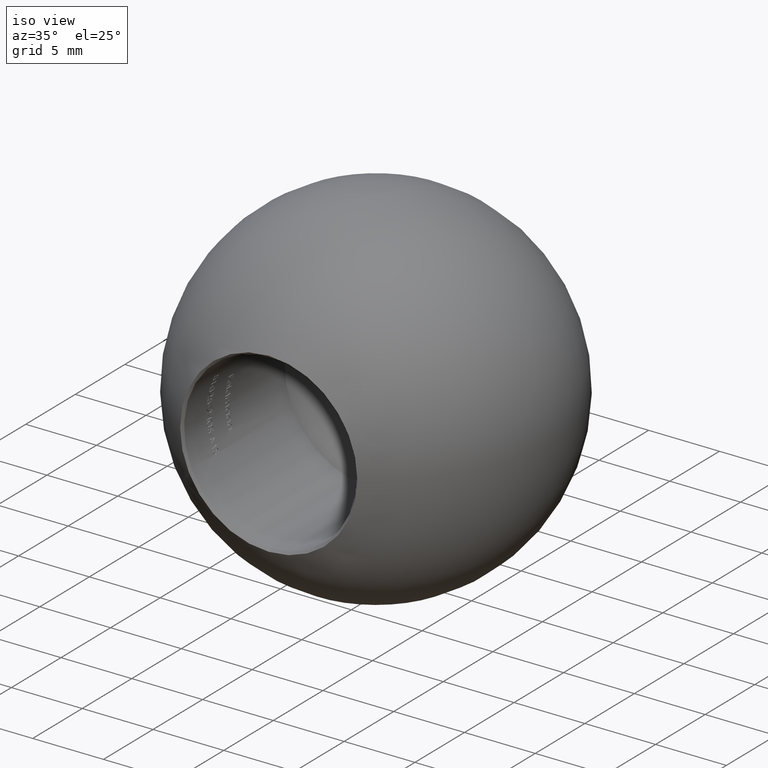
[diagram: clean part render]
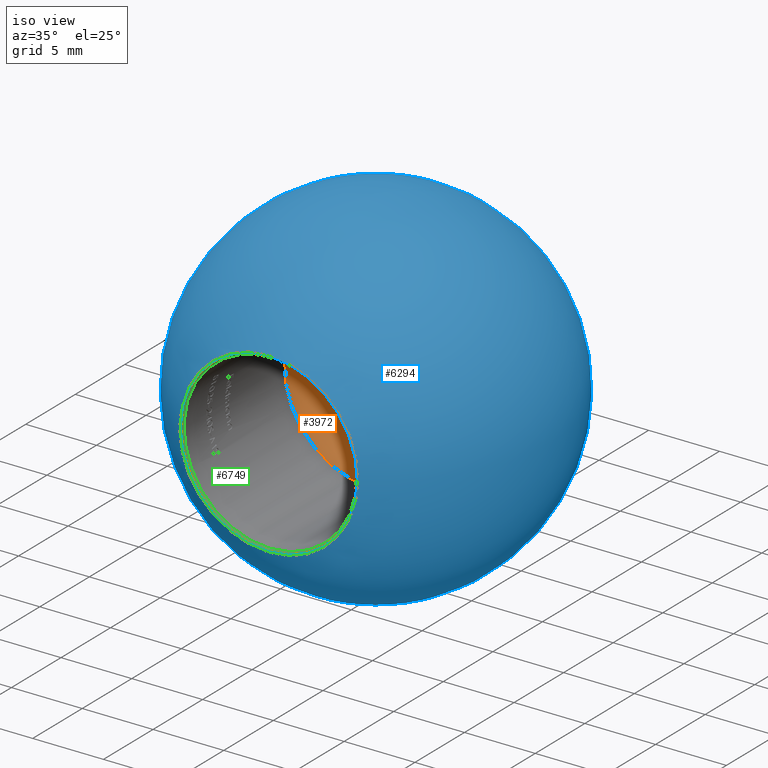
[diagram: same view with three faces highlighted in distinct colors, each labeled with its STEP entity id]
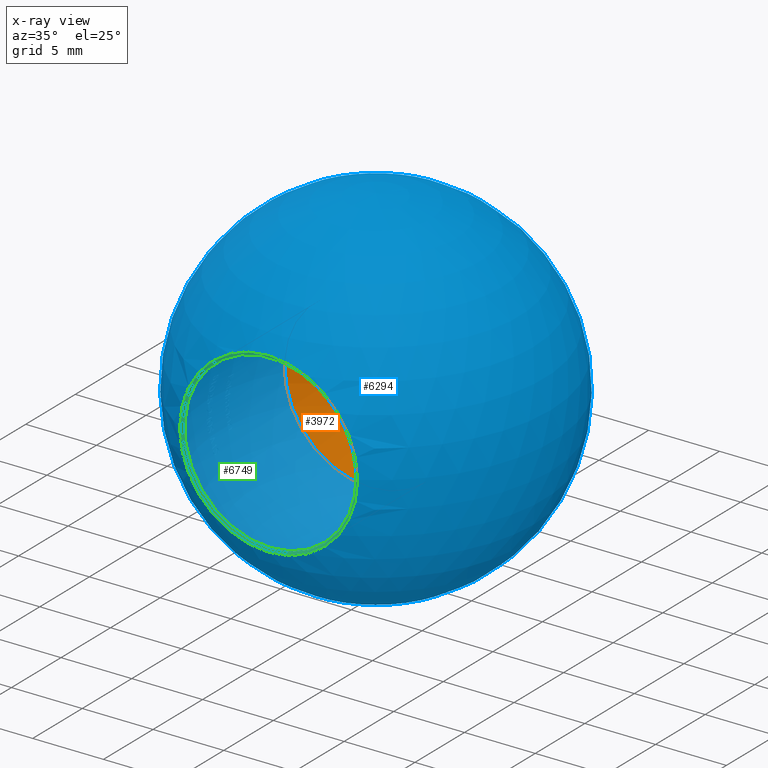
[diagram: x-ray of the same camera — body ghosted, the three highlighted faces saturated]
A machine part, iso view with three faces highlighted in distinct colors.
The next image is the same camera in x-ray (body ghosted, the three faces saturated) — at least one of them is partly hidden behind the body in this view.
Their STEP definitions:

[orange] entity #3972 — the highlighted conical surface has half-angle 59 deg.
#427 = EDGE_CURVE ( 'NONE', #3900, #3900, #2497, .T. ) ;
#1838 = CARTESIAN_POINT ( 'NONE',  ( 0.0000000000000000000, 12.00000000000000000, 0.0000000000000000000 ) ) ;
#2497 = CIRCLE ( 'NONE', #11840, 6.099999999999996100 ) ;
#2939 = CARTESIAN_POINT ( 'NONE',  ( 0.0000000000000000000, 12.00000000000000000, -6.099999999999996100 ) ) ;
#2976 = DIRECTION ( 'NONE',  ( -0.0000000000000000000, -1.000000000000000000, -0.0000000000000000000 ) ) ;
#3900 = VERTEX_POINT ( 'NONE', #2939 ) ;
#3972 = ADVANCED_FACE ( 'NONE', ( #10264 ), #12769, .F. ) ;
#4427 = AXIS2_PLACEMENT_3D ( 'NONE', #1838, #2976, #12400 ) ;
#6100 = DIRECTION ( 'NONE',  ( 0.0000000000000000000, 0.0000000000000000000, -1.000000000000000000 ) ) ;
#9577 = EDGE_LOOP ( 'NONE', ( #10932 ) ) ;
#10264 = FACE_OUTER_BOUND ( 'NONE', #9577, .T. ) ;
#10358 = DIRECTION ( 'NONE',  ( -0.0000000000000000000, -1.000000000000000000, -0.0000000000000000000 ) ) ;
#10932 = ORIENTED_EDGE ( 'NONE', *, *, #427, .T. ) ;
#11840 = AXIS2_PLACEMENT_3D ( 'NONE', #12529, #10358, #6100 ) ;
#12400 = DIRECTION ( 'NONE',  ( 0.0000000000000000000, 0.0000000000000000000, -1.000000000000000000 ) ) ;
#12529 = CARTESIAN_POINT ( 'NONE',  ( 0.0000000000000000000, 12.00000000000000000, 0.0000000000000000000 ) ) ;
#12769 = CONICAL_SURFACE ( 'NONE', #4427, 6.099999999999996100, 1.029744258676653900 ) ;

[blue] entity #6294 — the highlighted spherical surface has radius 12.5 mm.
#234 = FACE_OUTER_BOUND ( 'NONE', #6200, .T. ) ;
#592 = CARTESIAN_POINT ( 'NONE',  ( 5.315566646508728300E-032, 1.680092872920173000, 0.0000000000000000000 ) ) ;
#1525 = DIRECTION ( 'NONE',  ( -0.0000000000000000000, 1.000000000000000000, -0.0000000000000000000 ) ) ;
#2620 = DIRECTION ( 'NONE',  ( 0.0000000000000000000, 0.0000000000000000000, 1.000000000000000000 ) ) ;
#2754 = CARTESIAN_POINT ( 'NONE',  ( 5.315566646508728300E-032, 12.50000000000000000, 0.0000000000000000000 ) ) ;
#3570 = SPHERICAL_SURFACE ( 'NONE', #13664, 12.50000000000000000 ) ;
#4886 = VERTEX_POINT ( 'NONE', #10283 ) ;
#6200 = EDGE_LOOP ( 'NONE', ( #13632 ) ) ;
#6294 = ADVANCED_FACE ( 'NONE', ( #234 ), #3570, .T. ) ;
#6315 = EDGE_CURVE ( 'NONE', #4886, #4886, #13721, .T. ) ;
#6870 = AXIS2_PLACEMENT_3D ( 'NONE', #592, #1525, #2620 ) ;
#9032 = DIRECTION ( 'NONE',  ( -1.000000000000000000, -1.387778780781445700E-016, 0.0000000000000000000 ) ) ;
#10283 = CARTESIAN_POINT ( 'NONE',  ( 5.315566646508728300E-032, 1.680092872920173000, 6.259361769491142100 ) ) ;
#13210 = DIRECTION ( 'NONE',  ( -0.0000000000000000000, 0.0000000000000000000, -1.000000000000000000 ) ) ;
#13632 = ORIENTED_EDGE ( 'NONE', *, *, #6315, .T. ) ;
#13664 = AXIS2_PLACEMENT_3D ( 'NONE', #2754, #13210, #9032 ) ;
#13721 = CIRCLE ( 'NONE', #6870, 6.259361769491142100 ) ;

[green] entity #6749 — the highlighted conical surface has half-angle 45 deg.
#293 = EDGE_CURVE ( 'NONE', #7732, #7732, #5137, .T. ) ;
#592 = CARTESIAN_POINT ( 'NONE',  ( 5.315566646508728300E-032, 1.680092872920173000, 0.0000000000000000000 ) ) ;
#1190 = DIRECTION ( 'NONE',  ( 0.0000000000000000000, 0.0000000000000000000, -1.000000000000000000 ) ) ;
#1525 = DIRECTION ( 'NONE',  ( -0.0000000000000000000, 1.000000000000000000, -0.0000000000000000000 ) ) ;
#2243 = AXIS2_PLACEMENT_3D ( 'NONE', #8417, #12574, #11512 ) ;
#2367 = ORIENTED_EDGE ( 'NONE', *, *, #293, .F. ) ;
#2399 = CONICAL_SURFACE ( 'NONE', #2243, 6.099999999999997000, 0.7853981633974401700 ) ;
#2620 = DIRECTION ( 'NONE',  ( 0.0000000000000000000, 0.0000000000000000000, 1.000000000000000000 ) ) ;
#4487 = DIRECTION ( 'NONE',  ( 0.0000000000000000000, -1.000000000000000000, 0.0000000000000000000 ) ) ;
#4886 = VERTEX_POINT ( 'NONE', #10283 ) ;
#5137 = CIRCLE ( 'NONE', #11399, 6.099999999999997000 ) ;
#5215 = FACE_OUTER_BOUND ( 'NONE', #5324, .T. ) ;
#5324 = EDGE_LOOP ( 'NONE', ( #11863 ) ) ;
#5523 = CARTESIAN_POINT ( 'NONE',  ( 0.0000000000000000000, 1.839454642411322700, 0.0000000000000000000 ) ) ;
#6315 = EDGE_CURVE ( 'NONE', #4886, #4886, #13721, .T. ) ;
#6749 = ADVANCED_FACE ( 'NONE', ( #5215, #11405 ), #2399, .F. ) ;
#6870 = AXIS2_PLACEMENT_3D ( 'NONE', #592, #1525, #2620 ) ;
#7732 = VERTEX_POINT ( 'NONE', #9142 ) ;
#8417 = CARTESIAN_POINT ( 'NONE',  ( 0.0000000000000000000, 1.839454642411322700, 0.0000000000000000000 ) ) ;
#9142 = CARTESIAN_POINT ( 'NONE',  ( 0.0000000000000000000, 1.839454642411322700, -6.099999999999997000 ) ) ;
#10283 = CARTESIAN_POINT ( 'NONE',  ( 5.315566646508728300E-032, 1.680092872920173000, 6.259361769491142100 ) ) ;
#11399 = AXIS2_PLACEMENT_3D ( 'NONE', #5523, #4487, #1190 ) ;
#11405 = FACE_BOUND ( 'NONE', #12849, .T. ) ;
#11512 = DIRECTION ( 'NONE',  ( 0.0000000000000000000, 0.0000000000000000000, -1.000000000000000000 ) ) ;
#11863 = ORIENTED_EDGE ( 'NONE', *, *, #6315, .F. ) ;
#12574 = DIRECTION ( 'NONE',  ( 0.0000000000000000000, -1.000000000000000000, 0.0000000000000000000 ) ) ;
#12849 = EDGE_LOOP ( 'NONE', ( #2367 ) ) ;
#13721 = CIRCLE ( 'NONE', #6870, 6.259361769491142100 ) ;